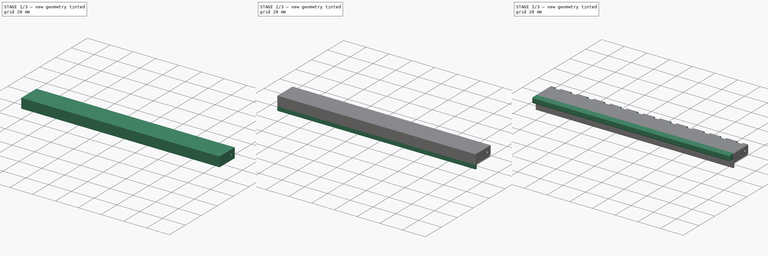
[diagram: build sequence overview — one tinted view per stage of 3, left to right]
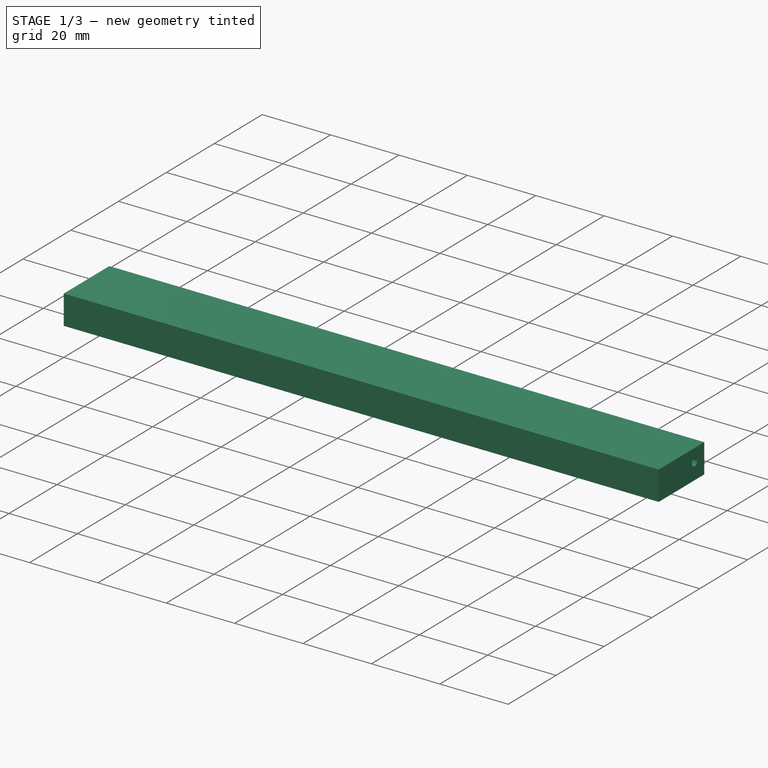
[diagram: stage 1 of 3 — iso view after this stage's code; geometry added in this stage tinted green]
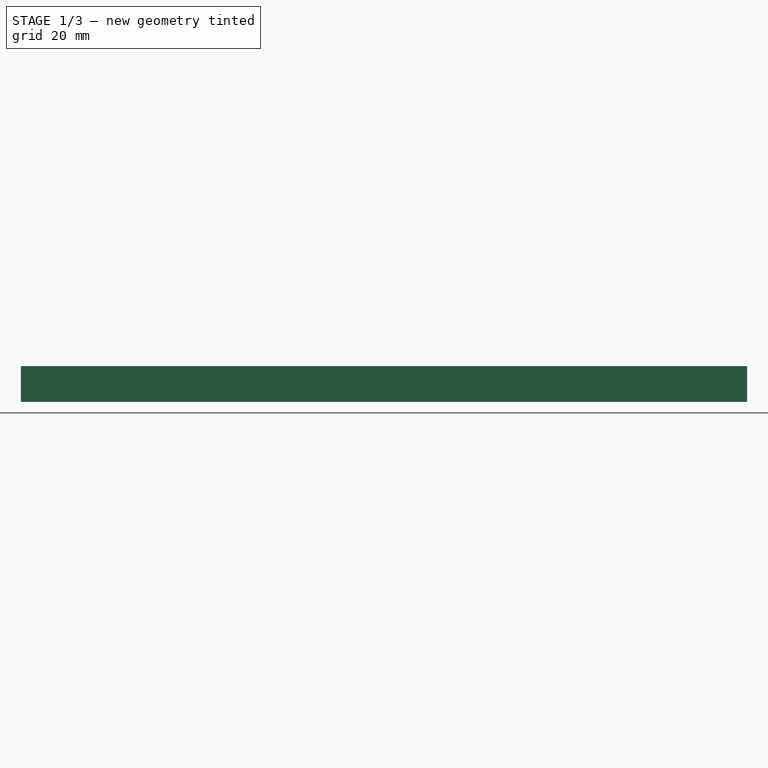
[diagram: stage 1 of 3 — front view after this stage's code; geometry added in this stage tinted green]
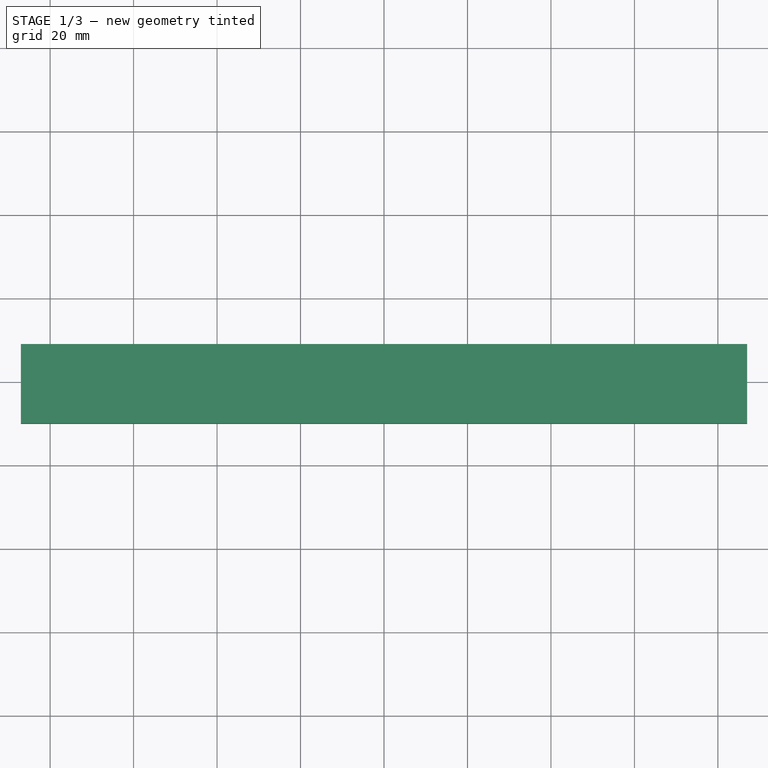
[diagram: stage 1 of 3 — top view after this stage's code; geometry added in this stage tinted green]
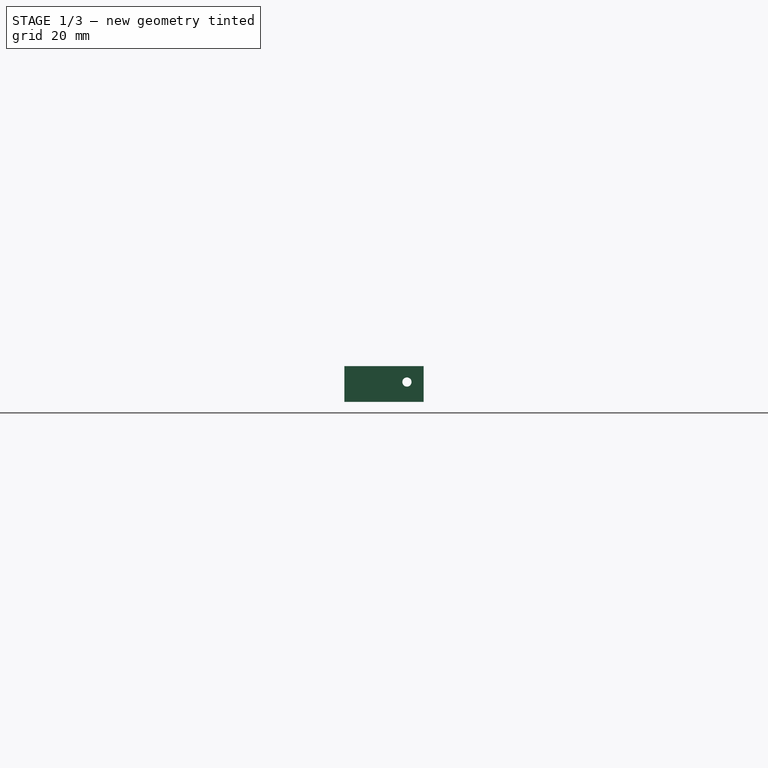
[diagram: stage 1 of 3 — right view after this stage's code; geometry added in this stage tinted green]
FCSTD DOCUMENT  (FreeCAD 0.19R24276 (Git))
Label: switch-cover
License: All rights reserved
LicenseURL: http://en.wikipedia.org/wiki/All_rights_reserved
objects: Sketcher::SketchObject×6, PartDesign::Pad×3, PartDesign::Pocket×2, PartDesign::Hole×1, PartDesign::Chamfer×1, PartDesign::Fillet×1, PartDesign::Body×1
note: 23 computed .brp shape members not serialized (recipe doc carries the construction recipe); baked Part::Feature solids carry a one-line shape summary decoded from their .brp

FEATURE [Sketcher::SketchObject] Sketch  label="base"
  FullyConstrained = true
  MapMode = 5
  Support = -> [XY_Plane]
  sketch-geometry (4):
    g0: LineSegment StartX=-87 StartY=9 StartZ=0 EndX=87 EndY=9 EndZ=0
    g1: LineSegment StartX=87 StartY=9 StartZ=0 EndX=87 EndY=-10 EndZ=0
    g2: LineSegment StartX=87 StartY=-10 StartZ=0 EndX=-87 EndY=-10 EndZ=0
    g3: LineSegment StartX=-87 StartY=-10 StartZ=0 EndX=-87 EndY=9 EndZ=0
  constraints (12):
    c: Coincident(g0,g1)
    c: Coincident(g1,g2)
    c: Coincident(g2,g3)
    c: Coincident(g3,g0)
    c: Horizontal(g0)
    c: Horizontal(g2)
    c: Vertical(g1)
    c: Vertical(g3)
    c: DistanceX(g-1,g0) = 87
    c: DistanceX(g0,g-1) = 87
    c: DistanceY(g-1,g0) = 9
    c: DistanceY(g2,g-1) = 10
FEATURE [PartDesign::Pad] Pad  label="base_pad"
  Direction = (1,1,1)
  Length = 8.55
  Length2 = 100
  Profile = -> Sketch
  Type = 0
FEATURE [Sketcher::SketchObject] Sketch001  label="hole"
  FullyConstrained = true
  MapMode = 5
  Placement = pos=(0,0,0) rot=(1,0,0;3.14159rad)
  sketch-geometry (4):
    g0: LineSegment StartX=-85 StartY=8.5 StartZ=0 EndX=85 EndY=8.5 EndZ=0
    g1: LineSegment StartX=85 StartY=8.5 StartZ=0 EndX=85 EndY=-7.5 EndZ=0
    g2: LineSegment StartX=85 StartY=-7.5 StartZ=0 EndX=-85 EndY=-7.5 EndZ=0
    g3: LineSegment StartX=-85 StartY=-7.5 StartZ=0 EndX=-85 EndY=8.5 EndZ=0
  constraints (12):
    c: Coincident(g0,g1)
    c: Coincident(g1,g2)
    c: Coincident(g2,g3)
    c: Coincident(g3,g0)
    c: Horizontal(g0)
    c: Horizontal(g2)
    c: Vertical(g1)
    c: Vertical(g3)
    c: DistanceX(g0,g-1) = 85
    c: DistanceX(g-1,g0) = 85
    c: DistanceY(g-1,g0) = 8.5
    c: DistanceY(g2,g-1) = 7.5
FEATURE [PartDesign::Pocket] Pocket  label="hole_pocket"
  BaseFeature = -> Pad
  Length = 7.3
  Length2 = 100
  Profile = -> Sketch001
  Type = 0
FEATURE [Sketcher::SketchObject] Sketch002  label="holder_hole"
  FullyConstrained = false
  MapMode = 5
  Placement = pos=(87,0,0) rot=(0.57735,0.57735,0.57735;2.0944rad)
  Support = -> [Pocket]
  sketch-geometry (1):
    g0: Circle CenterX=5 CenterY=4.75 CenterZ=0 NormalX=0 NormalY=0 NormalZ=1 AngleXU=0 Radius=1.1
  constraints (2):
    c: Diameter(g0) = 2.2
    c: DistanceY(g-1,g0) = 4.75
FEATURE [PartDesign::Hole] Hole
  BaseFeature = -> Pocket
  Depth = 25
  DepthType = 1
  Diameter = 2.2
  DrillForDepth = false
  DrillPoint = 1
  DrillPointAngle = 118
  HoleCutCountersinkAngle = 90
  HoleCutCustomValues = false
  HoleCutDepth = 0
  HoleCutDiameter = 6.1
  HoleCutType = 0
  ModelActualThread = false
  Profile = -> Sketch002
  Tapered = false
  TaperedAngle = 90
  ThreadAngle = 0
  ThreadClass = 0
  ThreadCutOffInner = 0
  ThreadCutOffOuter = 0
  ThreadDirection = 0
  ThreadFit = 0
  ThreadPitch = 0
  ThreadSize = 0
  ThreadType = 0
  Threaded = false
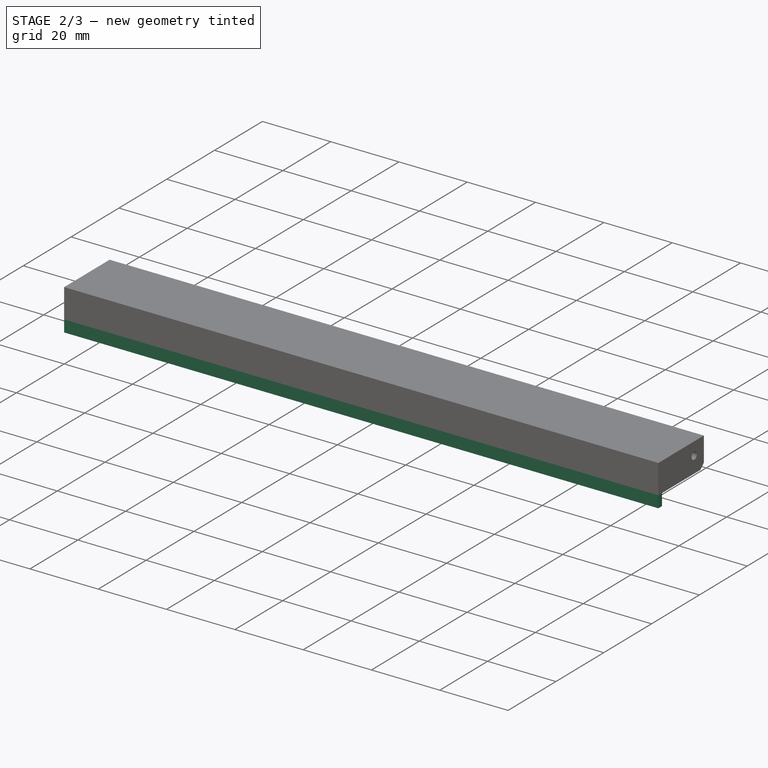
[diagram: stage 2 of 3 — iso view after this stage's code; geometry added in this stage tinted green]
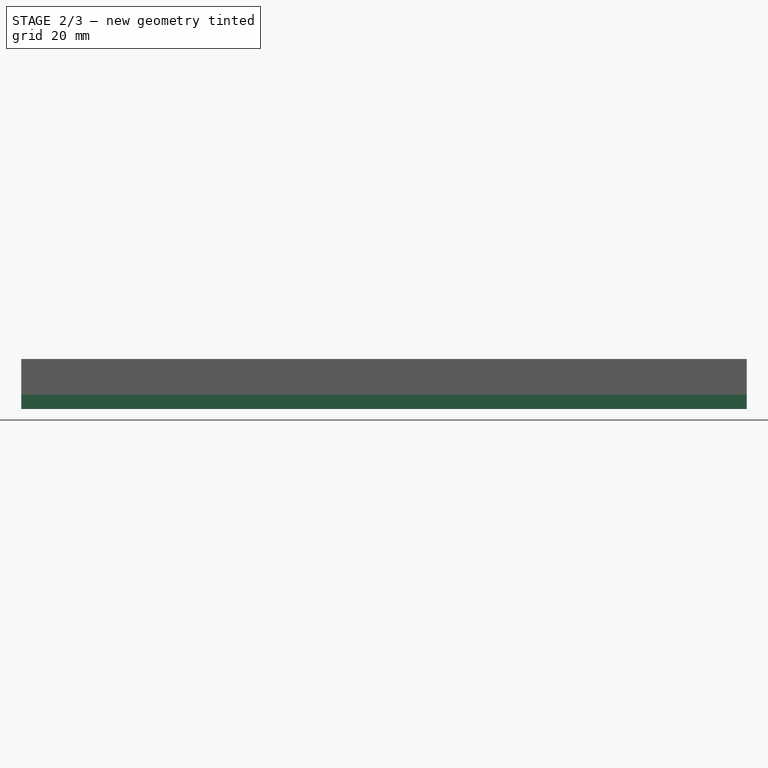
[diagram: stage 2 of 3 — front view after this stage's code; geometry added in this stage tinted green]
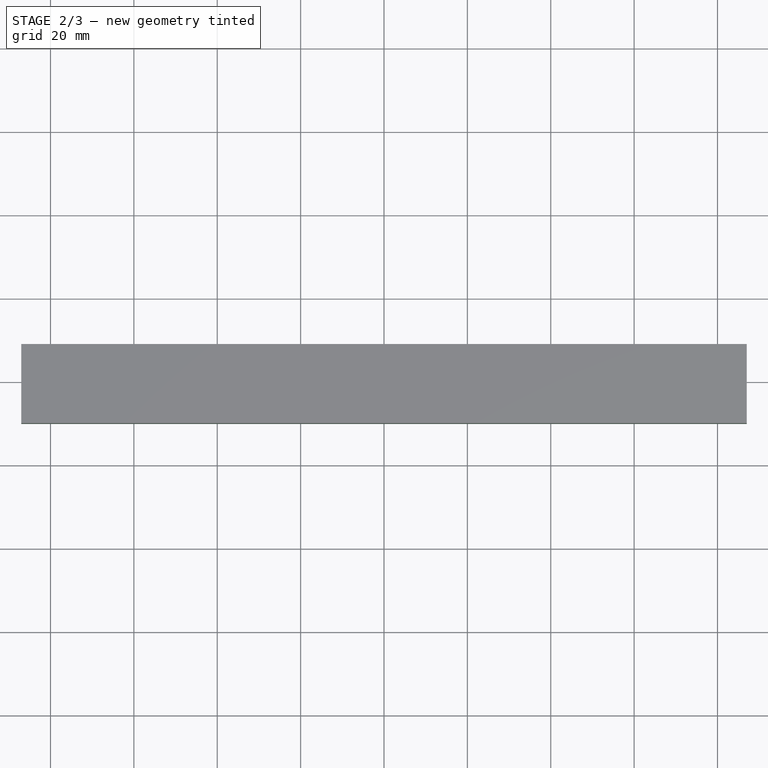
[diagram: stage 2 of 3 — top view after this stage's code; geometry added in this stage tinted green]
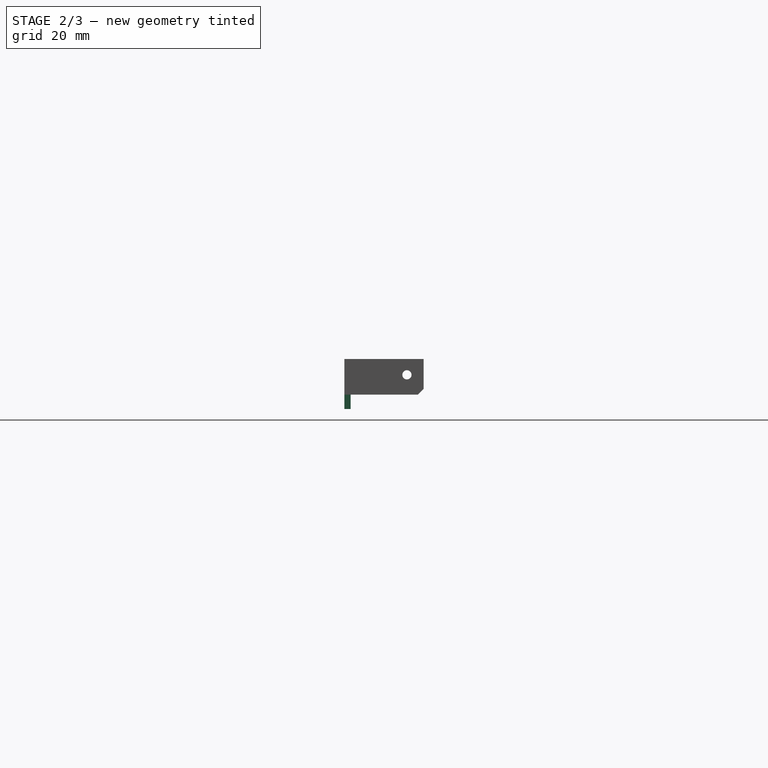
[diagram: stage 2 of 3 — right view after this stage's code; geometry added in this stage tinted green]
FEATURE [PartDesign::Chamfer] Chamfer
  Angle = 45
  Base = -> Hole [Edge3]
  BaseFeature = -> Hole
  ChamferType = 0
  FlipDirection = false
  Size = 1.4
  Size2 = 1
  SupportTransform = false
FEATURE [Sketcher::SketchObject] Sketch003  label="bottom_holder"
  FullyConstrained = true
  MapMode = 5
  Placement = pos=(0,0,0) rot=(1,0,0;3.14159rad)
  Support = -> [Chamfer]
  sketch-geometry (4):
    g0: LineSegment StartX=-87 StartY=10 StartZ=0 EndX=87 EndY=10 EndZ=0
    g1: LineSegment StartX=87 StartY=10 StartZ=0 EndX=87 EndY=8.5 EndZ=0
    g2: LineSegment StartX=87 StartY=8.5 StartZ=0 EndX=-87 EndY=8.5 EndZ=0
    g3: LineSegment StartX=-87 StartY=8.5 StartZ=0 EndX=-87 EndY=10 EndZ=0
  constraints (12):
    c: Coincident(g0,g1)
    c: Coincident(g1,g2)
    c: Coincident(g2,g3)
    c: Coincident(g3,g0)
    c: Horizontal(g0)
    c: Horizontal(g2)
    c: Vertical(g1)
    c: Vertical(g3)
    c: DistanceX(g-1,g0) = 87
    c: DistanceX(g0,g-1) = 87
    c: DistanceY(g3,g3) = 1.5
    c: DistanceY(g-1,g0) = 10
FEATURE [PartDesign::Pad] Pad001  label="bottom_holder_pad"
  BaseFeature = -> Chamfer
  Direction = (1,1,1)
  Length = 3.45
  Length2 = 100
  Profile = -> Sketch003
  Type = 0
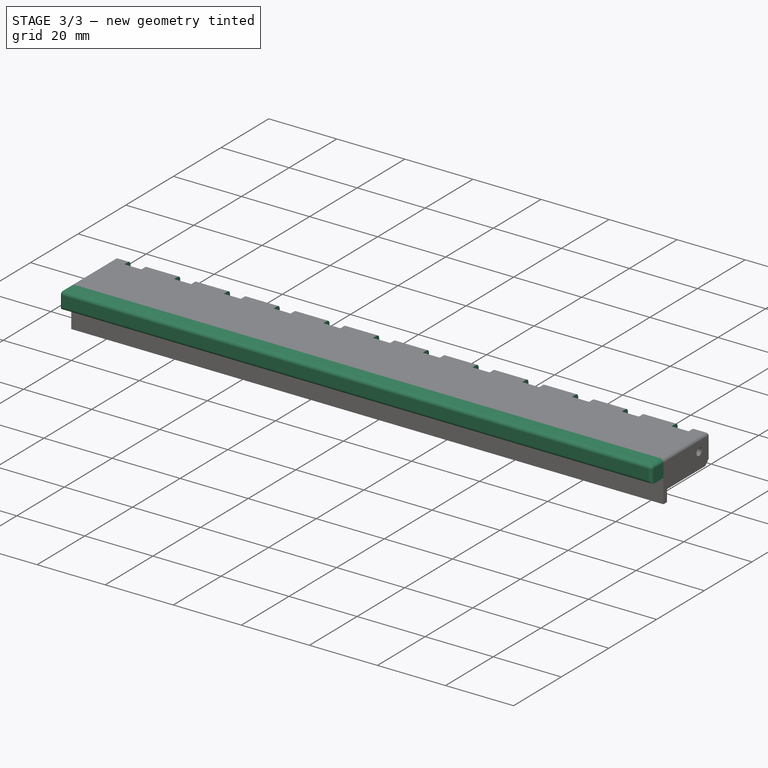
[diagram: stage 3 of 3 — iso view after this stage's code; geometry added in this stage tinted green]
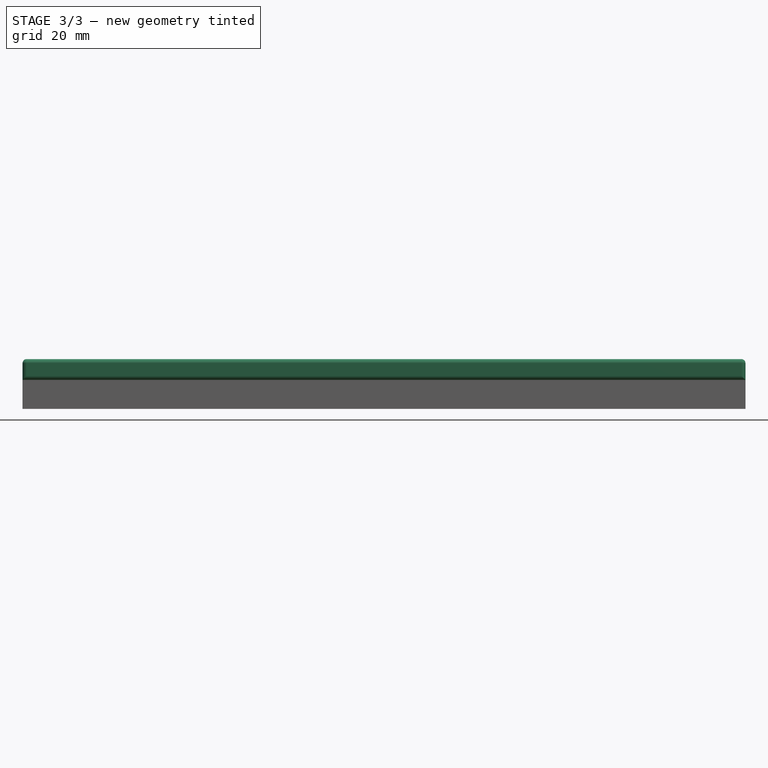
[diagram: stage 3 of 3 — front view after this stage's code; geometry added in this stage tinted green]
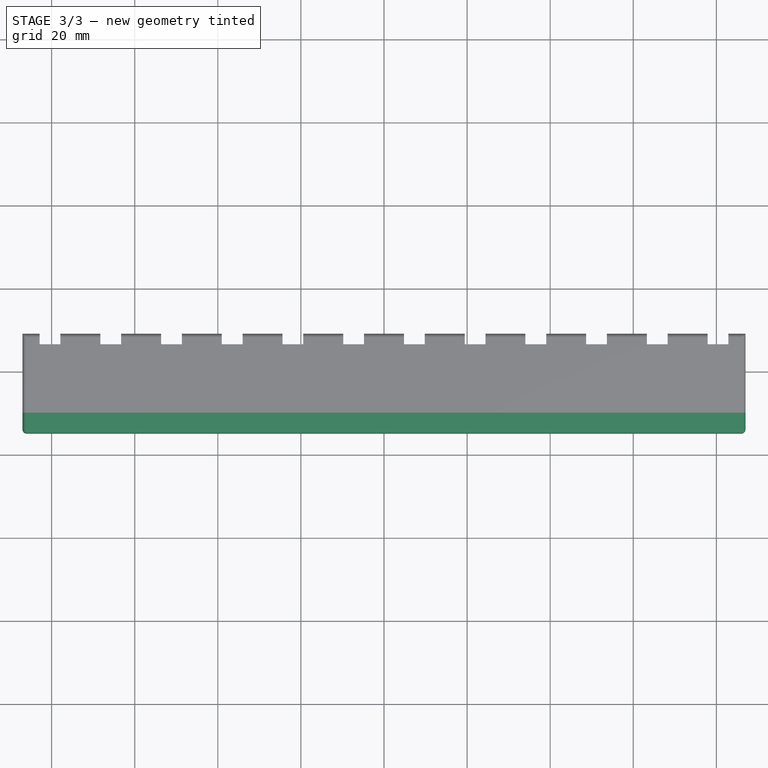
[diagram: stage 3 of 3 — top view after this stage's code; geometry added in this stage tinted green]
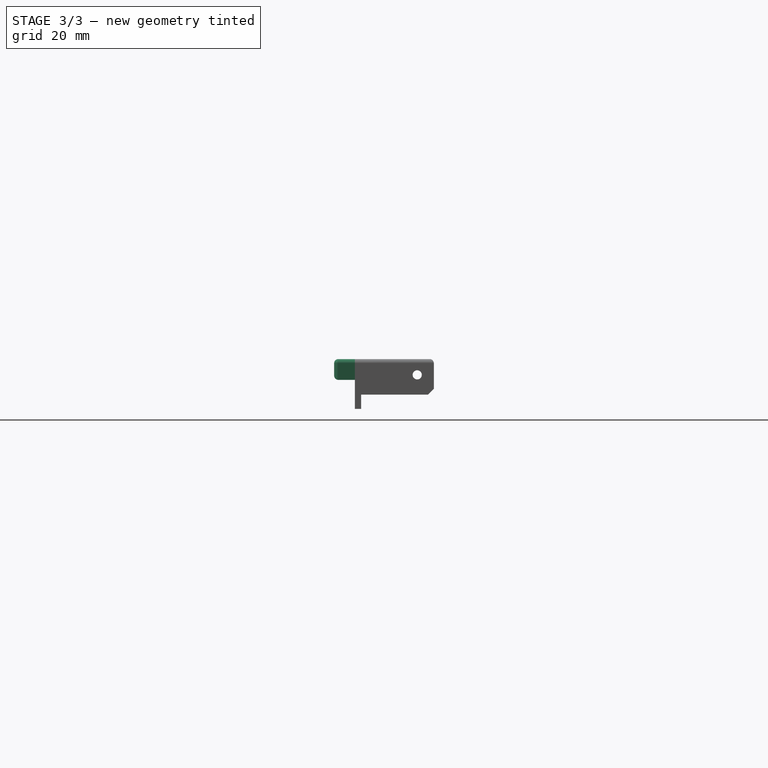
[diagram: stage 3 of 3 — right view after this stage's code; geometry added in this stage tinted green]
FEATURE [Sketcher::SketchObject] Sketch004  label="holder"
  FullyConstrained = true
  MapMode = 5
  Placement = pos=(0,-10,0) rot=(1,0,0;1.5708rad)
  Support = -> [Pad001]
  sketch-geometry (4):
    g0: LineSegment StartX=-87 StartY=8.55 StartZ=0 EndX=87 EndY=8.55 EndZ=0
    g1: LineSegment StartX=87 StartY=8.55 StartZ=0 EndX=87 EndY=3.55 EndZ=0
    g2: LineSegment StartX=87 StartY=3.55 StartZ=0 EndX=-87 EndY=3.55 EndZ=0
    g3: LineSegment StartX=-87 StartY=3.55 StartZ=0 EndX=-87 EndY=8.55 EndZ=0
  constraints (12):
    c: Coincident(g0,g1)
    c: Coincident(g1,g2)
    c: Coincident(g2,g3)
    c: Coincident(g3,g0)
    c: Horizontal(g0)
    c: Horizontal(g2)
    c: Vertical(g1)
    c: Vertical(g3)
    c: DistanceX(g-1,g0) = 87
    c: DistanceX(g0,g-1) = 87
    c: DistanceY(g-1,g2) = 3.55
    c: DistanceY(g-1,g0) = 8.55
FEATURE [PartDesign::Pad] Pad002  label="holder_pad"
  BaseFeature = -> Pad001
  Direction = (1,1,1)
  Length = 5
  Length2 = 100
  Profile = -> Sketch004
  Type = 0
FEATURE [PartDesign::Fillet] Fillet
  Base = -> Pad002 [Edge32,Edge10,Edge14,Edge36,Edge3,Face22]
  BaseFeature = -> Pad002
  Radius = 1
  SupportTransform = false
FEATURE [Sketcher::SketchObject] Sketch005  label="top_hole"
  FullyConstrained = false
  MapMode = 5
  Placement = pos=(0,0,8.55) rot=(0,0,1;0rad)
  Support = -> [Fillet]
  sketch-geometry (48):
    g0: LineSegment StartX=-9.8085 StartY=16.5999 StartZ=0 EndX=-4.8085 EndY=16.5999 EndZ=0
    g1: LineSegment StartX=-4.8085 StartY=16.5999 StartZ=0 EndX=-4.8085 EndY=6.45 EndZ=0
    g2: LineSegment StartX=-4.8085 StartY=6.45 StartZ=0 EndX=-9.8085 EndY=6.45 EndZ=0
    g3: LineSegment StartX=-9.8085 StartY=6.45 StartZ=0 EndX=-9.8085 EndY=16.5999 EndZ=0
    g4: LineSegment StartX=4.8085 StartY=17.1186 StartZ=0 EndX=9.8085 EndY=17.1186 EndZ=0
    g5: LineSegment StartX=9.8085 StartY=17.1186 StartZ=0 EndX=9.8085 EndY=6.45 EndZ=0
    g6: LineSegment StartX=9.8085 StartY=6.45 StartZ=0 EndX=4.8085 EndY=6.45 EndZ=0
    g7: LineSegment StartX=4.8085 StartY=6.45 StartZ=0 EndX=4.8085 EndY=17.1186 EndZ=0
    g8: LineSegment StartX=-24.4255 StartY=15 StartZ=0 EndX=-19.4255 EndY=15 EndZ=0
    g9: LineSegment StartX=-19.4255 StartY=15 StartZ=0 EndX=-19.4255 EndY=6.45 EndZ=0
    g10: LineSegment StartX=-19.4255 StartY=6.45 StartZ=0 EndX=-24.4255 EndY=6.45 EndZ=0
    g11: LineSegment StartX=-24.4255 StartY=6.45 StartZ=0 EndX=-24.4255 EndY=15 EndZ=0
    g12: LineSegment StartX=-39.0425 StartY=15 StartZ=0 EndX=-34.0425 EndY=15 EndZ=0
    g13: LineSegment StartX=-34.0425 StartY=15 StartZ=0 EndX=-34.0425 EndY=6.45 EndZ=0
    g14: LineSegment StartX=-34.0425 StartY=6.45 StartZ=0 EndX=-39.0425 EndY=6.45 EndZ=0
    g15: LineSegment StartX=-39.0425 StartY=6.45 StartZ=0 EndX=-39.0425 EndY=15 EndZ=0
    g16: LineSegment StartX=-53.6595 StartY=15 StartZ=0 EndX=-48.6595 EndY=15 EndZ=0
    g17: LineSegment StartX=-48.6595 StartY=15 StartZ=0 EndX=-48.6595 EndY=6.45 EndZ=0
    g18: LineSegment StartX=-48.6595 StartY=6.45 StartZ=0 EndX=-53.6595 EndY=6.45 EndZ=0
    g19: LineSegment StartX=-53.6595 StartY=6.45 StartZ=0 EndX=-53.6595 EndY=15 EndZ=0
    g20: LineSegment StartX=-68.2765 StartY=15 StartZ=0 EndX=-63.2765 EndY=15 EndZ=0
    g21: LineSegment StartX=-63.2765 StartY=15 StartZ=0 EndX=-63.2765 EndY=6.45 EndZ=0
    g22: LineSegment StartX=-63.2765 StartY=6.45 StartZ=0 EndX=-68.2765 EndY=6.45 EndZ=0
    g23: LineSegment StartX=-68.2765 StartY=6.45 StartZ=0 EndX=-68.2765 EndY=15 EndZ=0
    g24: LineSegment StartX=-82.8935 StartY=15 StartZ=0 EndX=-77.8935 EndY=15 EndZ=0
    g25: LineSegment StartX=-77.8935 StartY=15 StartZ=0 EndX=-77.8935 EndY=6.45 EndZ=0
    g26: LineSegment StartX=-77.8935 StartY=6.45 StartZ=0 EndX=-82.8935 EndY=6.45 EndZ=0
    g27: LineSegment StartX=-82.8935 StartY=6.45 StartZ=0 EndX=-82.8935 EndY=15 EndZ=0
    g28: LineSegment StartX=19.4255 StartY=16.1843 StartZ=0 EndX=24.4255 EndY=16.1843 EndZ=0
    g29: LineSegment StartX=24.4255 StartY=16.1843 StartZ=0 EndX=24.4255 EndY=6.45 EndZ=0
    g30: LineSegment StartX=24.4255 StartY=6.45 StartZ=0 EndX=19.4255 EndY=6.45 EndZ=0
    g31: LineSegment StartX=19.4255 StartY=6.45 StartZ=0 EndX=19.4255 EndY=16.1843 EndZ=0
    g32: LineSegment StartX=34.0425 StartY=16.6255 StartZ=0 EndX=39.0425 EndY=16.6255 EndZ=0
    g33: LineSegment StartX=39.0425 StartY=16.6255 StartZ=0 EndX=39.0425 EndY=6.45 EndZ=0
    g34: LineSegment StartX=39.0425 StartY=6.45 StartZ=0 EndX=34.0425 EndY=6.45 EndZ=0
    g35: LineSegment StartX=34.0425 StartY=6.45 StartZ=0 EndX=34.0425 EndY=16.6255 EndZ=0
    g36: LineSegment StartX=48.6595 StartY=15 StartZ=0 EndX=53.6595 EndY=15 EndZ=0
    g37: LineSegment StartX=53.6595 StartY=15 StartZ=0 EndX=53.6595 EndY=6.45 EndZ=0
    g38: LineSegment StartX=53.6595 StartY=6.45 StartZ=0 EndX=48.6595 EndY=6.45 EndZ=0
    g39: LineSegment StartX=48.6595 StartY=6.45 StartZ=0 EndX=48.6595 EndY=15 EndZ=0
    g40: LineSegment StartX=63.2765 StartY=15 StartZ=0 EndX=68.2765 EndY=15 EndZ=0
    g41: LineSegment StartX=68.2765 StartY=15 StartZ=0 EndX=68.2765 EndY=6.45 EndZ=0
    g42: LineSegment StartX=68.2765 StartY=6.45 StartZ=0 EndX=63.2765 EndY=6.45 EndZ=0
    g43: LineSegment StartX=63.2765 StartY=6.45 StartZ=0 EndX=63.2765 EndY=15 EndZ=0
    g44: LineSegment StartX=77.8935 StartY=15 StartZ=0 EndX=82.8935 EndY=15 EndZ=0
    g45: LineSegment StartX=82.8935 StartY=15 StartZ=0 EndX=82.8935 EndY=6.45 EndZ=0
    g46: LineSegment StartX=82.8935 StartY=6.45 StartZ=0 EndX=77.8935 EndY=6.45 EndZ=0
    g47: LineSegment StartX=77.8935 StartY=6.45 StartZ=0 EndX=77.8935 EndY=15 EndZ=0
  constraints (132):
    c: Coincident(g0,g1)
    c: Coincident(g1,g2)
    c: Coincident(g2,g3)
    c: Coincident(g3,g0)
    c: Horizontal(g0)
    c: Horizontal(g2)
    c: Vertical(g1)
    c: Vertical(g3)
    c: DistanceY(g-1,g2) = 6.45
    c: Coincident(g4,g5)
    c: Coincident(g5,g6)
    c: Coincident(g6,g7)
    c: Coincident(g7,g4)
    c: Horizontal(g4)
    c: Horizontal(g6)
    c: Vertical(g5)
    c: Vertical(g7)
    c: DistanceY(g-1,g6) = 6.45
    c: DistanceX(g0,g0) = 5
    c: DistanceX(g4,g4) = 5
    c: DistanceX(g1,g-1) = 4.8085
    c: DistanceX(g-1,g6) = 4.8085
    c: Coincident(g8,g9)
    c: Coincident(g9,g10)
    c: Coincident(g10,g11)
    c: Coincident(g11,g8)
    c: Horizontal(g8)
    c: Horizontal(g10)
    c: Vertical(g9)
    c: Vertical(g11)
    c: Coincident(g12,g13)
    c: Coincident(g13,g14)
    c: Coincident(g14,g15)
    c: Coincident(g15,g12)
    c: Horizontal(g12)
    c: Horizontal(g14)
    c: Vertical(g13)
    c: Vertical(g15)
    c: DistanceX(g8,g8) = 5
    c: DistanceX(g12,g12) = 5
    c: DistanceY(g-1,g9) = 6.45
    c: DistanceY(g-1,g13) = 6.45
    c: DistanceX(g9,g2) = 9.617
    c: DistanceX(g13,g10) = 9.617
    c: Coincident(g16,g17)
    c: Coincident(g17,g18)
    c: Coincident(g18,g19)
    c: Coincident(g19,g16)
    c: Horizontal(g16)
    c: Horizontal(g18)
    c: Vertical(g17)
    c: Vertical(g19)
    c: Coincident(g20,g21)
    c: Coincident(g21,g22)
    c: Coincident(g22,g23)
    c: Coincident(g23,g20)
    c: Horizontal(g20)
    c: Horizontal(g22)
    c: Vertical(g21)
    c: Vertical(g23)
    c: Coincident(g24,g25)
    c: Coincident(g25,g26)
    c: Coincident(g26,g27)
    c: Coincident(g27,g24)
    c: Horizontal(g24)
    c: Horizontal(g26)
    c: Vertical(g25)
    c: Vertical(g27)
    c: DistanceX(g16,g16) = 5
    c: DistanceX(g20,g20) = 5
    c: DistanceX(g24,g24) = 5
    c: DistanceY(g-1,g17) = 6.45
    c: DistanceY(g-1,g21) = 6.45
    c: DistanceY(g-1,g25) = 6.45
    c: DistanceX(g17,g14) = 9.617
    c: DistanceX(g21,g18) = 9.617
    c: DistanceX(g25,g22) = 9.617
    c: Coincident(g28,g29)
    c: Coincident(g29,g30)
    c: Coincident(g30,g31)
    c: Coincident(g31,g28)
    c: Horizontal(g28)
    c: Horizontal(g30)
    c: Vertical(g29)
    c: Vertical(g31)
    c: Coincident(g32,g33)
    c: Coincident(g33,g34)
    c: Coincident(g34,g35)
    c: Coincident(g35,g32)
    c: Horizontal(g32)
    c: Horizontal(g34)
    c: Vertical(g33)
    c: Vertical(g35)
    c: Coincident(g36,g37)
    c: Coincident(g37,g38)
    c: Coincident(g38,g39)
    c: Coincident(g39,g36)
    c: Horizontal(g36)
    c: Horizontal(g38)
    c: Vertical(g37)
    c: Vertical(g39)
    c: Coincident(g40,g41)
    c: Coincident(g41,g42)
    c: Coincident(g42,g43)
    c: Coincident(g43,g40)
    c: Horizontal(g40)
    c: Horizontal(g42)
    c: Vertical(g41)
    c: Vertical(g43)
    c: Coincident(g44,g45)
    c: Coincident(g45,g46)
    c: Coincident(g46,g47)
    c: Coincident(g47,g44)
    c: Horizontal(g44)
    c: Horizontal(g46)
    c: Vertical(g45)
    c: Vertical(g47)
    c: DistanceX(g28,g28) = 5
    c: DistanceX(g32,g32) = 5
    c: DistanceX(g36,g36) = 5
    c: DistanceX(g40,g40) = 5
    c: DistanceX(g44,g44) = 5
    c: DistanceY(g-1,g30) = 6.45
    c: DistanceY(g-1,g34) = 6.45
    c: DistanceY(g-1,g38) = 6.45
    c: DistanceY(g-1,g42) = 6.45
    c: DistanceY(g-1,g46) = 6.45
    c: DistanceX(g5,g30) = 9.617
    c: DistanceX(g29,g34) = 9.617
    c: DistanceX(g33,g38) = 9.617
    c: DistanceX(g37,g42) = 9.617
    c: DistanceX(g41,g46) = 9.617
FEATURE [PartDesign::Pocket] Pocket001  label="top_hole_pocket"
  BaseFeature = -> Fillet
  Length = 20
  Length2 = 100
  Profile = -> Sketch005
  Type = 0
FEATURE [PartDesign::Body] Body
  Group = -> [Sketch,Pad,Sketch001,Pocket,Sketch002,Hole,Chamfer,Sketch003,Pad001,Sketch004,Pad002,Fillet,Sketch005,Pocket001]
  Origin = -> Origin
  Placement = pos=(0,-5,-4.75) rot=(0,0,1;0rad)
  Tip = -> Pocket001
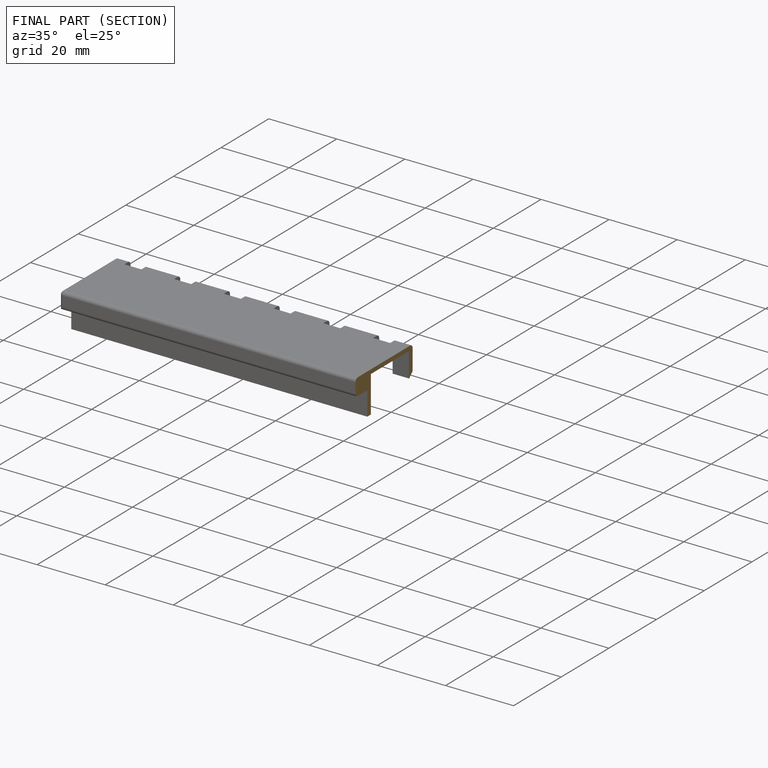
[diagram: finished part — half-section view (interior)]
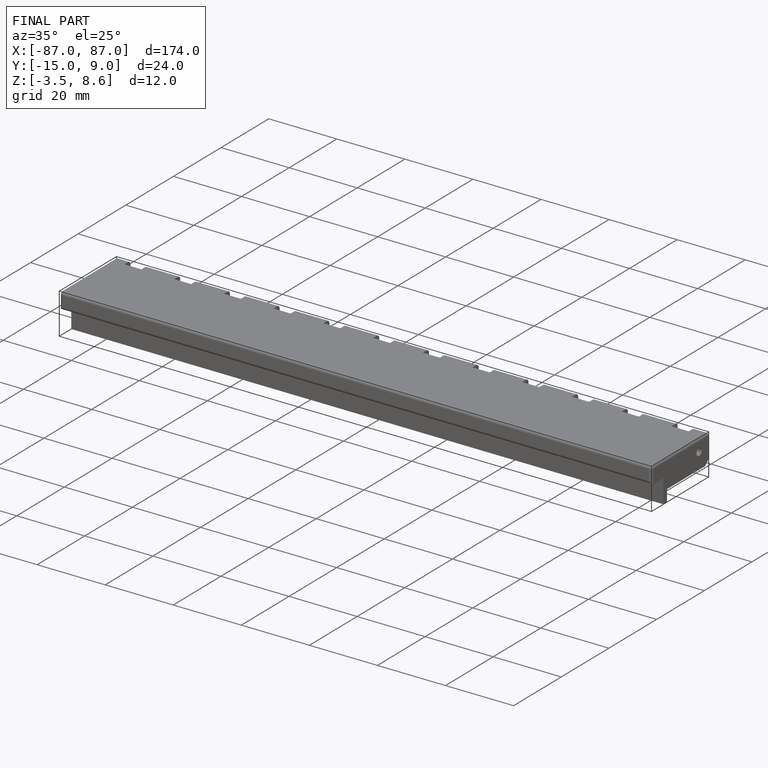
[diagram: finished part — iso view with bounding-box wireframe]
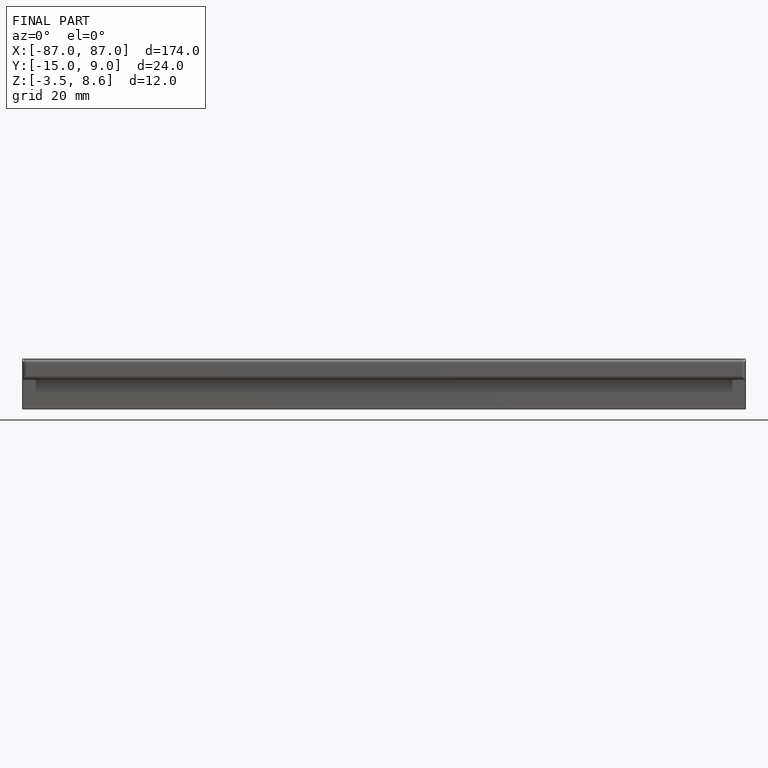
[diagram: finished part — front view with bounding-box wireframe]
